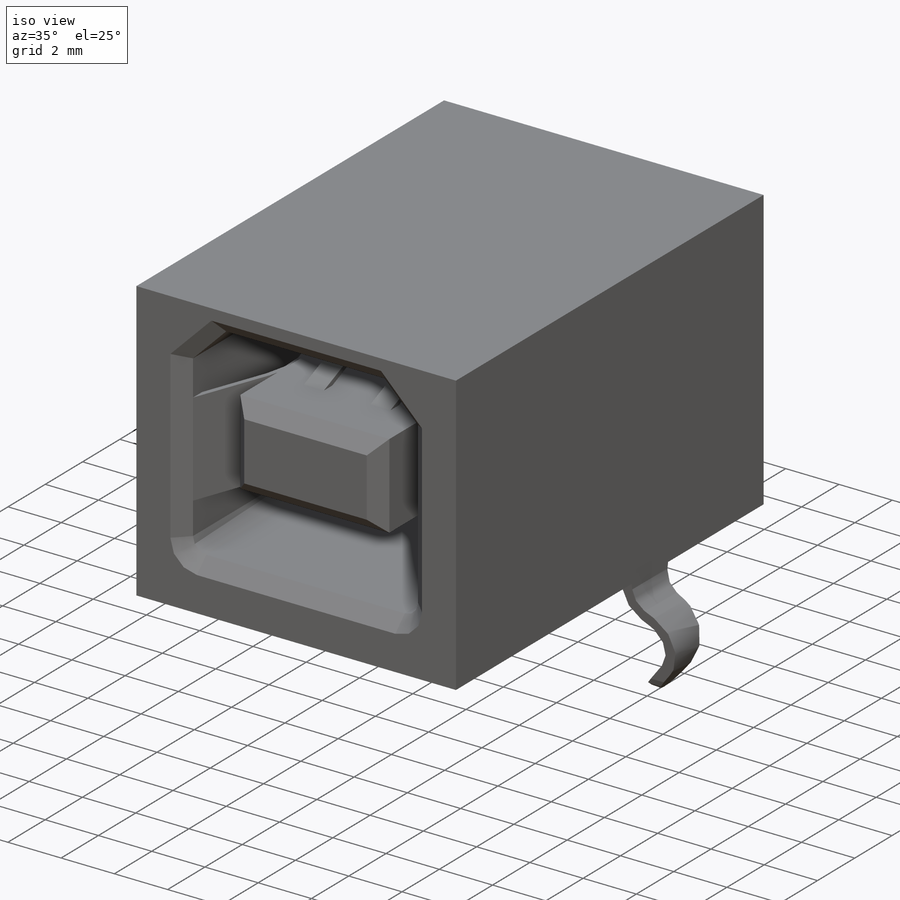
[diagram: iso view]
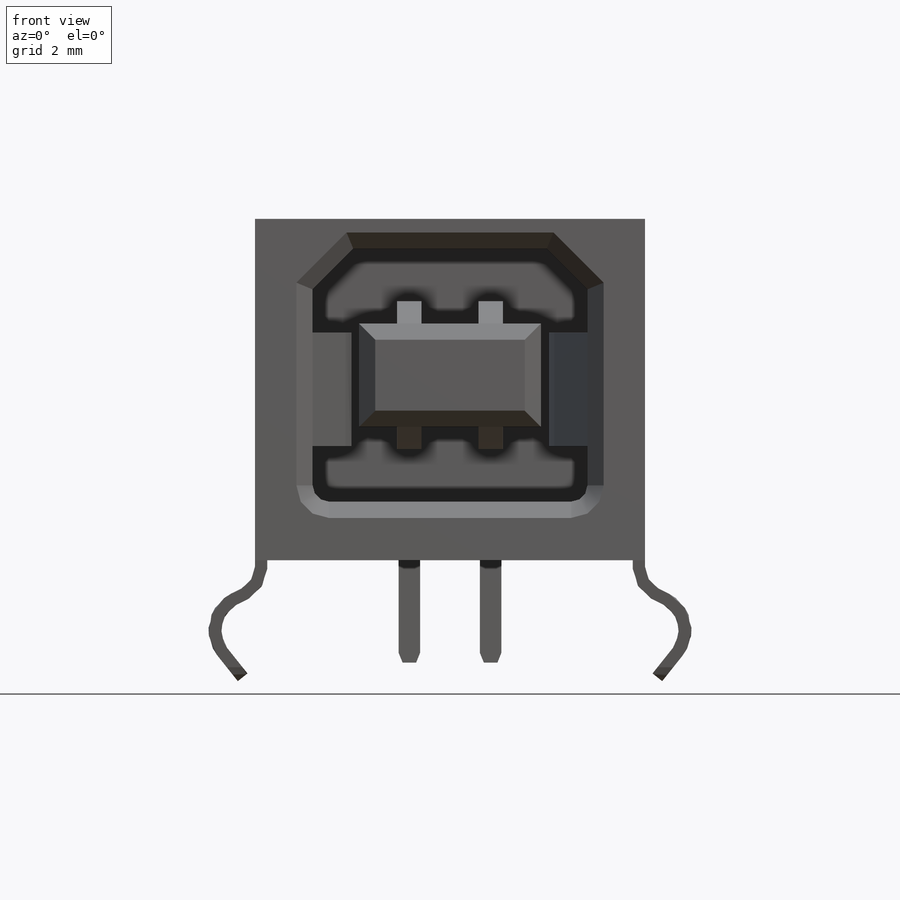
[diagram: front view]
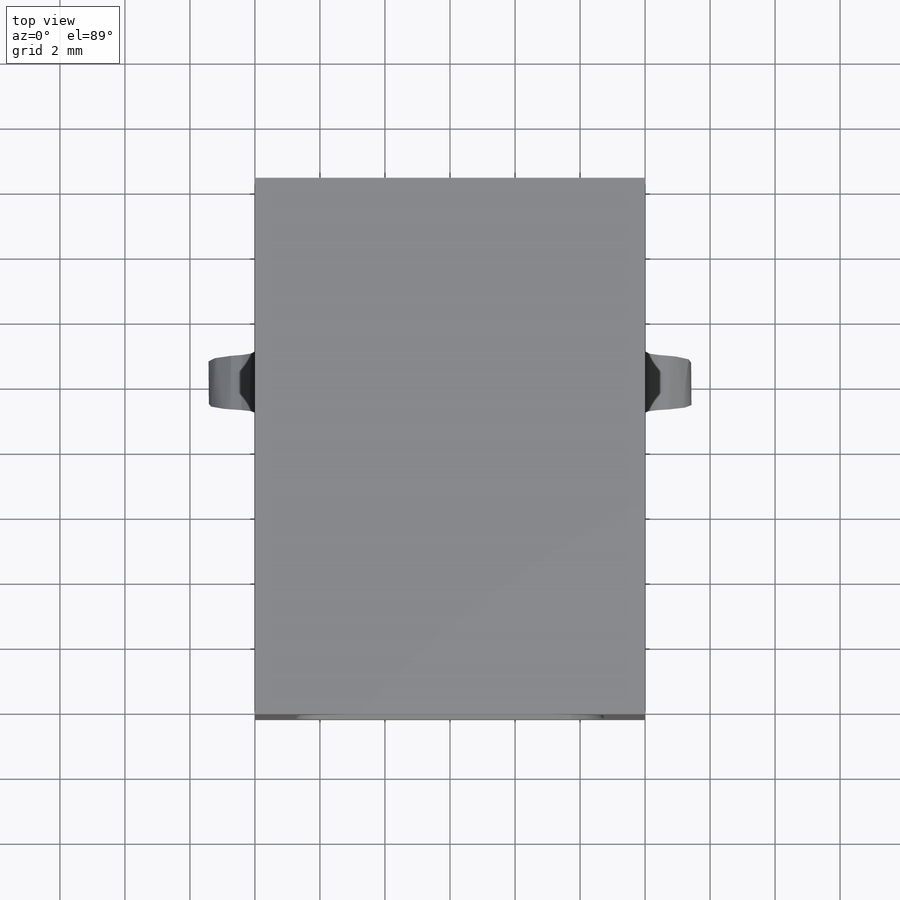
[diagram: top view]
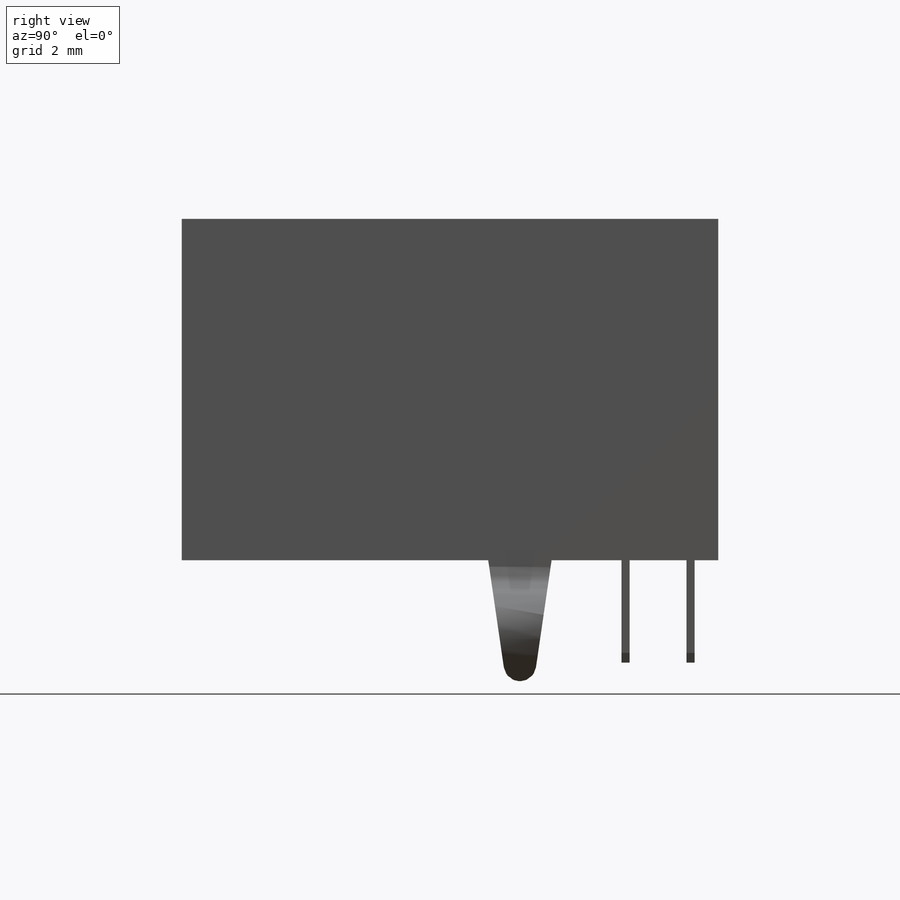
[diagram: right view]
SOLIDWORKS PART (.sldprt)
format: sldprt  version: not decoded by parser v0  size: 628,736 bytes
history: native  units: mm
features: sketch x10, extrude x6, plane x4, cut_extrude x2, chamfer x2, pattern_linear x2, material x1 + 1 further entry (+10 scaffold rows collapsed)
feature tree (38):
  scaffold x10  (default folders/planes/origin — collapsed)
  material  "Material <not specified>"
  "Annotations"  RD1=5.92031mm RD2=3.752144mm
  sketch  "Sketch1"  dims[D1=12.0mm D2=10.5mm]
  extrude  "Base"  Depth=16.5mm
  sketch  "Sketch2"  dims[c1.D1=12.7mm c1.D2=12.7mm c2.D1=0.5mm c2.D3=12.7mm c2.D4=31.75mm c3.D3=8.45mm c3.D5=197.612mm c3.D6=144.526mm c3.D9=31.75mm c4.D5=7.78mm c4.D2=4.81mm]
  cut_extrude  "Contact Opening"  Depth=9mm
  chamfer  "Contact Opening Lead-in"  Distance=0.5mm Angle=45deg
  sketch  "Sketch3"  dims[D1=5.6mm D2=3.18mm D3=4.81mm]
  extrude  "Contact Area"  Depth=8.5mm
  chamfer  "Contact Area Lead-in"  Distance=0.5mm Angle=45deg
  plane  "Ground Leg Plane"  Offset=10.4mm
  sketch  "Sketch4"  dims[c1.D2=1.0mm c1.D3=25.4mm c1.D5=31.75mm c1.D6=25.4mm c2.D2=0.75mm c2.D3=1.25mm c2.D7=1.25mm c2.D4=1.25mm c2.D1=0.15mm c3.D4=3.72mm c3.D5=317.5mm c3.D6=378.46mm c3.D1=0.2mm c4.D4=2.5mm c4.D5=3.72mm c4.D6=12.5mm c4.D7=14.9mm c5.D4=14.9mm c5.D7=2.15mm c5.D6=12.5mm c5.D2=~6.669967mm c5.D3=0.3mm c5.D1=10.6mm c6.D2=8.1mm c6.D8=0.38mm c6.D9=0.38mm]
  sketch  "Sketch7"  dims[c1.D2=3.0mm c1.D5=3.0mm c1.D1=5.85mm c1.D3=1.8mm c1.D4=0.53mm c2.D5=3.75mm c2.D6=0.175mm]
  extrude  "Holding Tines"  Depth=3.5mm
  plane  "Tail Plane"  Offset=0.85mm
  plane  "Contact Plane"  Offset=1.25mm
  plane  "SM TAILS PLANE"  Offset=0.75mm
  sketch  "Sketch8"  dims[c1.D2=3.0mm c1.D3=3.0mm c1.D4=3.0mm c1.D1=6.5mm c2.D3=2.3mm c2.D4=4.0mm c2.D5=0.1mm c2.D6=0.175mm]
  extrude  "Contact"  Depth=0.75mm
  pattern_linear  "Contact Pattern"  Count1=2 Count2=1 Spacing1=2.5mm Spacing2=50mm
  sketch  "Sketch12"  dims[D1=1.15mm D2=2.75mm D3=9.0mm]
  sketch  "Sketch13"  dims[c1.D2=0.75mm c1.D3=0.87mm c1.D5=0.75mm c1.D6=0.87mm c1.D8=0.87mm c1.D1=0.2mm c2.D2=1.95mm c2.D3=1.57mm c2.D4=0.38mm c2.D7=0.18mm c2.D8=~0.347168mm]
  extrude  "TH Ground Legs"  Depth=1.95mm
  sketch  "Sketch14"  dims[c1.D2=0.5mm c1.D4=0.5mm c1.D1=3.75mm c1.D3=3.75mm c2.D4=0.53mm c2.D3=1.95mm c3.D4=3.75mm]
  cut_extrude  "TH Ground Leg Shape"  [1 undecoded]
  sketch  "Sketch15"  dims[c1.D1=0.3mm c1.D2=0.66mm c1.D3=2.5mm c1.D4=1.25mm c1.D5=3.15mm c2.D1=0.3mm c2.D2=0.66mm c2.D3=0.92mm c2.D4=~0.121208mm c2.D6=~0.121208mm]
  extrude  "TH Tails"  Depth=0.25mm
  pattern_linear  "TH Tails Pattern"  Count1=2 Count2=1 Spacing1=2mm Spacing2=1mm
decode coverage: 21 of 22 modeling features carry decoded parameters; 1 rows unclassified (native names shown)
note: ~ marks probable driven/reference dimensions
note: 1 parameter value undecoded
note: suppression state not decoded; provenance and decode notes live in map.json
